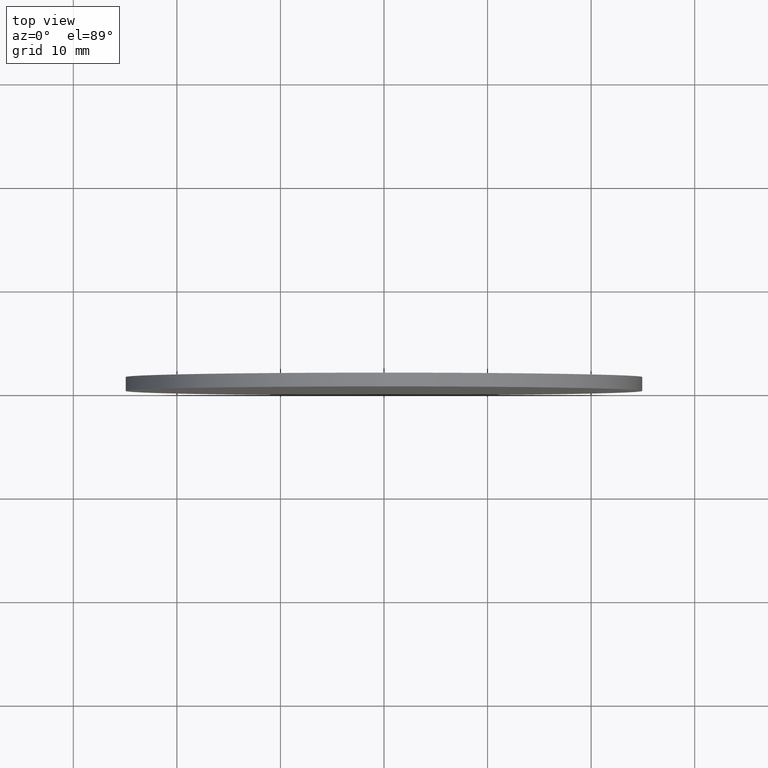
[diagram: clean part render]
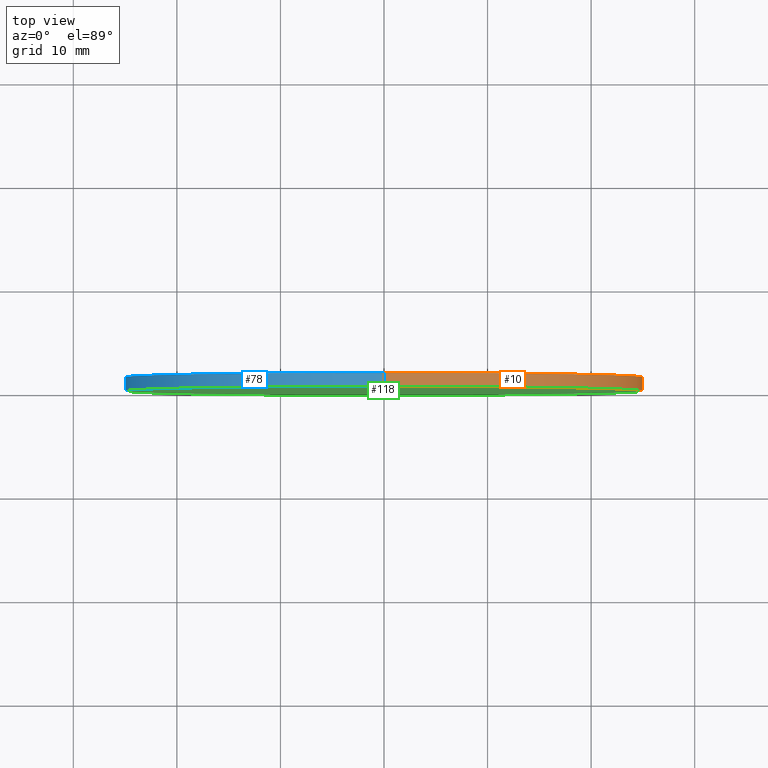
[diagram: same view with three faces highlighted in distinct colors, each labeled with its STEP entity id]
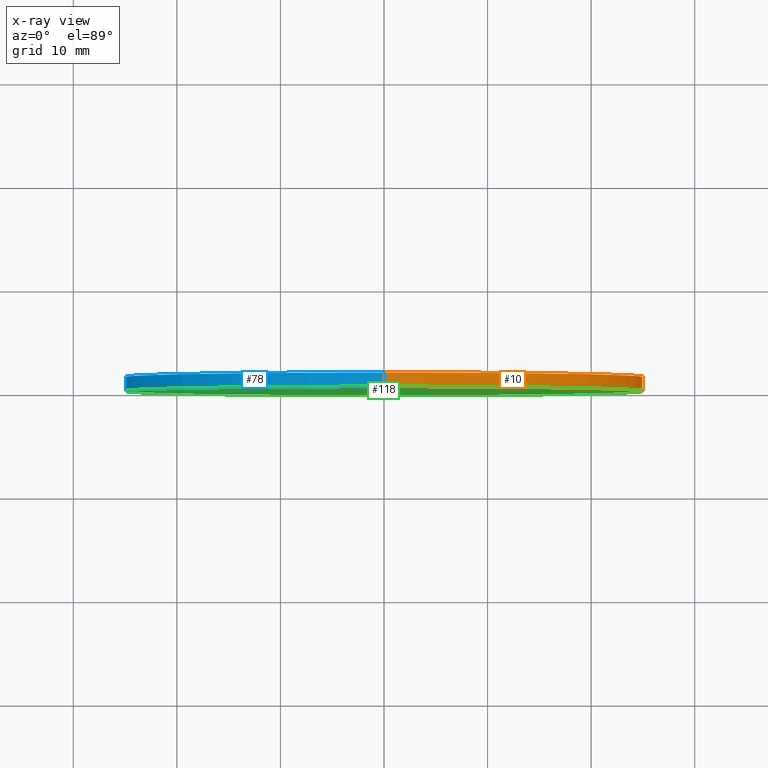
[diagram: x-ray of the same camera — body ghosted, the three highlighted faces saturated]
A machine part, top view with three faces highlighted in distinct colors.
The next image is the same camera in x-ray (body ghosted, the three faces saturated) — at least one of them is partly hidden behind the body in this view.
Their STEP definitions:

[orange] entity #10 — the highlighted cylindrical surface (partial cylindrical patch) has radius 25 mm, axis along (-0, -1, -0).
#5 = VERTEX_POINT ( 'NONE', #87 ) ;
#10 = ADVANCED_FACE ( 'NONE', ( #11 ), #75, .T. ) ;
#11 = FACE_OUTER_BOUND ( 'NONE', #39, .T. ) ;
#14 = AXIS2_PLACEMENT_3D ( 'NONE', #135, #74, #134 ) ;
#15 = DIRECTION ( 'NONE',  ( -0.0000000000000000000, -1.000000000000000000, -0.0000000000000000000 ) ) ;
#17 = LINE ( 'NONE', #138, #67 ) ;
#19 = AXIS2_PLACEMENT_3D ( 'NONE', #110, #38, #113 ) ;
#21 = CARTESIAN_POINT ( 'NONE',  ( 0.0000000000000000000, 1.330000000000000100, 0.0000000000000000000 ) ) ;
#22 = VERTEX_POINT ( 'NONE', #93 ) ;
#26 = CARTESIAN_POINT ( 'NONE',  ( 3.061616997868383000E-015, 1.330000000000000100, 25.00000000000000000 ) ) ;
#27 = EDGE_CURVE ( 'NONE', #56, #5, #52, .T. ) ;
#38 = DIRECTION ( 'NONE',  ( -0.0000000000000000000, -1.000000000000000000, -0.0000000000000000000 ) ) ;
#39 = EDGE_LOOP ( 'NONE', ( #123, #116, #81, #50 ) ) ;
#49 = DIRECTION ( 'NONE',  ( -0.0000000000000000000, -1.000000000000000000, -0.0000000000000000000 ) ) ;
#50 = ORIENTED_EDGE ( 'NONE', *, *, #133, .F. ) ;
#52 = CIRCLE ( 'NONE', #107, 25.00000000000000000 ) ;
#54 = CARTESIAN_POINT ( 'NONE',  ( 3.061616997868383000E-015, 1.330000000000000100, 25.00000000000000000 ) ) ;
#56 = VERTEX_POINT ( 'NONE', #54 ) ;
#63 = VECTOR ( 'NONE', #15, 1000.000000000000000 ) ;
#67 = VECTOR ( 'NONE', #49, 1000.000000000000000 ) ;
#74 = DIRECTION ( 'NONE',  ( 0.0000000000000000000, 1.000000000000000000, 0.0000000000000000000 ) ) ;
#75 = CYLINDRICAL_SURFACE ( 'NONE', #19, 25.00000000000000000 ) ;
#81 = ORIENTED_EDGE ( 'NONE', *, *, #105, .T. ) ;
#87 = CARTESIAN_POINT ( 'NONE',  ( 0.0000000000000000000, 1.330000000000000100, -25.00000000000000000 ) ) ;
#91 = CIRCLE ( 'NONE', #14, 25.00000000000000000 ) ;
#93 = CARTESIAN_POINT ( 'NONE',  ( 0.0000000000000000000, 0.0000000000000000000, -25.00000000000000000 ) ) ;
#96 = DIRECTION ( 'NONE',  ( 0.0000000000000000000, 1.000000000000000000, 0.0000000000000000000 ) ) ;
#103 = CARTESIAN_POINT ( 'NONE',  ( 3.061616997868383000E-015, 0.0000000000000000000, 25.00000000000000000 ) ) ;
#105 = EDGE_CURVE ( 'NONE', #136, #22, #91, .T. ) ;
#107 = AXIS2_PLACEMENT_3D ( 'NONE', #21, #96, #112 ) ;
#110 = CARTESIAN_POINT ( 'NONE',  ( 0.0000000000000000000, 1.330000000000000100, 0.0000000000000000000 ) ) ;
#112 = DIRECTION ( 'NONE',  ( 0.0000000000000000000, 0.0000000000000000000, 1.000000000000000000 ) ) ;
#113 = DIRECTION ( 'NONE',  ( 0.0000000000000000000, 0.0000000000000000000, -1.000000000000000000 ) ) ;
#116 = ORIENTED_EDGE ( 'NONE', *, *, #131, .T. ) ;
#123 = ORIENTED_EDGE ( 'NONE', *, *, #27, .F. ) ;
#129 = LINE ( 'NONE', #26, #63 ) ;
#131 = EDGE_CURVE ( 'NONE', #56, #136, #129, .T. ) ;
#133 = EDGE_CURVE ( 'NONE', #5, #22, #17, .T. ) ;
#134 = DIRECTION ( 'NONE',  ( 0.0000000000000000000, 0.0000000000000000000, 1.000000000000000000 ) ) ;
#135 = CARTESIAN_POINT ( 'NONE',  ( 0.0000000000000000000, 0.0000000000000000000, 0.0000000000000000000 ) ) ;
#136 = VERTEX_POINT ( 'NONE', #103 ) ;
#138 = CARTESIAN_POINT ( 'NONE',  ( 0.0000000000000000000, 1.330000000000000100, -25.00000000000000000 ) ) ;

[blue] entity #78 — the highlighted cylindrical surface (partial cylindrical patch) has radius 25 mm, axis along (-0, -1, -0).
#3 = AXIS2_PLACEMENT_3D ( 'NONE', #43, #84, #115 ) ;
#5 = VERTEX_POINT ( 'NONE', #87 ) ;
#8 = DIRECTION ( 'NONE',  ( -0.0000000000000000000, -1.000000000000000000, -0.0000000000000000000 ) ) ;
#15 = DIRECTION ( 'NONE',  ( -0.0000000000000000000, -1.000000000000000000, -0.0000000000000000000 ) ) ;
#16 = CARTESIAN_POINT ( 'NONE',  ( 0.0000000000000000000, 1.330000000000000100, 0.0000000000000000000 ) ) ;
#17 = LINE ( 'NONE', #138, #67 ) ;
#20 = CYLINDRICAL_SURFACE ( 'NONE', #128, 25.00000000000000000 ) ;
#22 = VERTEX_POINT ( 'NONE', #93 ) ;
#26 = CARTESIAN_POINT ( 'NONE',  ( 3.061616997868383000E-015, 1.330000000000000100, 25.00000000000000000 ) ) ;
#28 = EDGE_LOOP ( 'NONE', ( #41, #125, #45, #59 ) ) ;
#29 = CARTESIAN_POINT ( 'NONE',  ( 0.0000000000000000000, 0.0000000000000000000, 0.0000000000000000000 ) ) ;
#31 = FACE_OUTER_BOUND ( 'NONE', #28, .T. ) ;
#32 = DIRECTION ( 'NONE',  ( 0.0000000000000000000, 0.0000000000000000000, -1.000000000000000000 ) ) ;
#33 = DIRECTION ( 'NONE',  ( 0.0000000000000000000, 1.000000000000000000, 0.0000000000000000000 ) ) ;
#41 = ORIENTED_EDGE ( 'NONE', *, *, #131, .F. ) ;
#43 = CARTESIAN_POINT ( 'NONE',  ( 0.0000000000000000000, 1.330000000000000100, 0.0000000000000000000 ) ) ;
#44 = EDGE_CURVE ( 'NONE', #5, #56, #101, .T. ) ;
#45 = ORIENTED_EDGE ( 'NONE', *, *, #133, .T. ) ;
#46 = DIRECTION ( 'NONE',  ( 0.0000000000000000000, 0.0000000000000000000, 1.000000000000000000 ) ) ;
#49 = DIRECTION ( 'NONE',  ( -0.0000000000000000000, -1.000000000000000000, -0.0000000000000000000 ) ) ;
#54 = CARTESIAN_POINT ( 'NONE',  ( 3.061616997868383000E-015, 1.330000000000000100, 25.00000000000000000 ) ) ;
#56 = VERTEX_POINT ( 'NONE', #54 ) ;
#59 = ORIENTED_EDGE ( 'NONE', *, *, #66, .T. ) ;
#63 = VECTOR ( 'NONE', #15, 1000.000000000000000 ) ;
#66 = EDGE_CURVE ( 'NONE', #22, #136, #109, .T. ) ;
#67 = VECTOR ( 'NONE', #49, 1000.000000000000000 ) ;
#78 = ADVANCED_FACE ( 'NONE', ( #31 ), #20, .T. ) ;
#84 = DIRECTION ( 'NONE',  ( 0.0000000000000000000, 1.000000000000000000, 0.0000000000000000000 ) ) ;
#87 = CARTESIAN_POINT ( 'NONE',  ( 0.0000000000000000000, 1.330000000000000100, -25.00000000000000000 ) ) ;
#93 = CARTESIAN_POINT ( 'NONE',  ( 0.0000000000000000000, 0.0000000000000000000, -25.00000000000000000 ) ) ;
#101 = CIRCLE ( 'NONE', #3, 25.00000000000000000 ) ;
#103 = CARTESIAN_POINT ( 'NONE',  ( 3.061616997868383000E-015, 0.0000000000000000000, 25.00000000000000000 ) ) ;
#109 = CIRCLE ( 'NONE', #121, 25.00000000000000000 ) ;
#115 = DIRECTION ( 'NONE',  ( 0.0000000000000000000, 0.0000000000000000000, 1.000000000000000000 ) ) ;
#121 = AXIS2_PLACEMENT_3D ( 'NONE', #29, #33, #46 ) ;
#125 = ORIENTED_EDGE ( 'NONE', *, *, #44, .F. ) ;
#128 = AXIS2_PLACEMENT_3D ( 'NONE', #16, #8, #32 ) ;
#129 = LINE ( 'NONE', #26, #63 ) ;
#131 = EDGE_CURVE ( 'NONE', #56, #136, #129, .T. ) ;
#133 = EDGE_CURVE ( 'NONE', #5, #22, #17, .T. ) ;
#136 = VERTEX_POINT ( 'NONE', #103 ) ;
#138 = CARTESIAN_POINT ( 'NONE',  ( 0.0000000000000000000, 1.330000000000000100, -25.00000000000000000 ) ) ;

[green] entity #118 — the highlighted planar face has unit normal (0, 1, 0).
#14 = AXIS2_PLACEMENT_3D ( 'NONE', #135, #74, #134 ) ;
#22 = VERTEX_POINT ( 'NONE', #93 ) ;
#23 = DIRECTION ( 'NONE',  ( 0.0000000000000000000, 1.000000000000000000, 0.0000000000000000000 ) ) ;
#24 = DIRECTION ( 'NONE',  ( 0.0000000000000000000, -0.0000000000000000000, 1.000000000000000000 ) ) ;
#29 = CARTESIAN_POINT ( 'NONE',  ( 0.0000000000000000000, 0.0000000000000000000, 0.0000000000000000000 ) ) ;
#33 = DIRECTION ( 'NONE',  ( 0.0000000000000000000, 1.000000000000000000, 0.0000000000000000000 ) ) ;
#37 = EDGE_LOOP ( 'NONE', ( #104, #60 ) ) ;
#46 = DIRECTION ( 'NONE',  ( 0.0000000000000000000, 0.0000000000000000000, 1.000000000000000000 ) ) ;
#60 = ORIENTED_EDGE ( 'NONE', *, *, #105, .F. ) ;
#61 = PLANE ( 'NONE',  #79 ) ;
#66 = EDGE_CURVE ( 'NONE', #22, #136, #109, .T. ) ;
#74 = DIRECTION ( 'NONE',  ( 0.0000000000000000000, 1.000000000000000000, 0.0000000000000000000 ) ) ;
#79 = AXIS2_PLACEMENT_3D ( 'NONE', #98, #23, #24 ) ;
#89 = FACE_OUTER_BOUND ( 'NONE', #37, .T. ) ;
#91 = CIRCLE ( 'NONE', #14, 25.00000000000000000 ) ;
#93 = CARTESIAN_POINT ( 'NONE',  ( 0.0000000000000000000, 0.0000000000000000000, -25.00000000000000000 ) ) ;
#98 = CARTESIAN_POINT ( 'NONE',  ( 0.0000000000000000000, 0.0000000000000000000, 0.0000000000000000000 ) ) ;
#103 = CARTESIAN_POINT ( 'NONE',  ( 3.061616997868383000E-015, 0.0000000000000000000, 25.00000000000000000 ) ) ;
#104 = ORIENTED_EDGE ( 'NONE', *, *, #66, .F. ) ;
#105 = EDGE_CURVE ( 'NONE', #136, #22, #91, .T. ) ;
#109 = CIRCLE ( 'NONE', #121, 25.00000000000000000 ) ;
#118 = ADVANCED_FACE ( 'NONE', ( #89 ), #61, .F. ) ;
#121 = AXIS2_PLACEMENT_3D ( 'NONE', #29, #33, #46 ) ;
#134 = DIRECTION ( 'NONE',  ( 0.0000000000000000000, 0.0000000000000000000, 1.000000000000000000 ) ) ;
#135 = CARTESIAN_POINT ( 'NONE',  ( 0.0000000000000000000, 0.0000000000000000000, 0.0000000000000000000 ) ) ;
#136 = VERTEX_POINT ( 'NONE', #103 ) ;